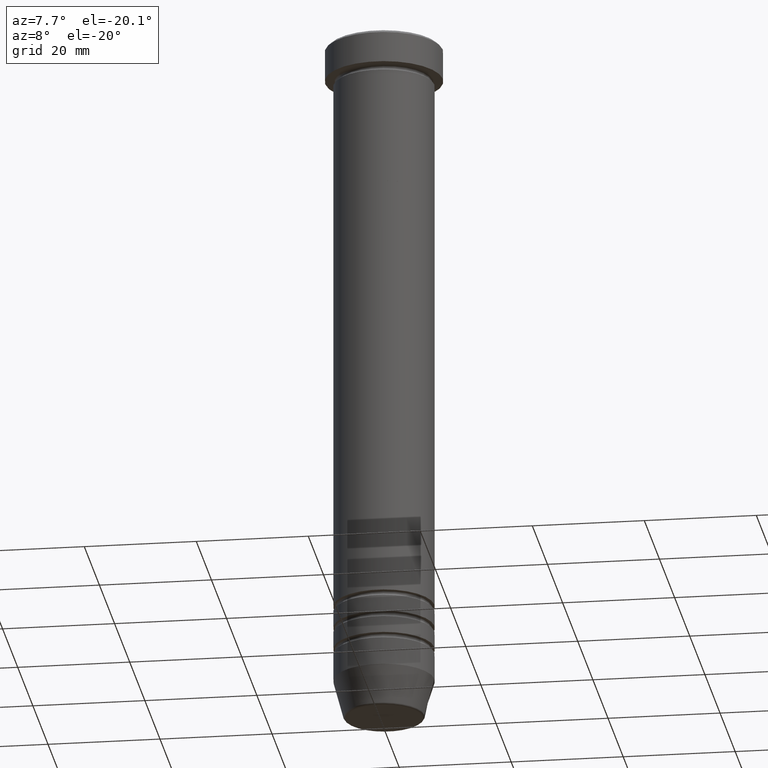
[diagram: clean part render]
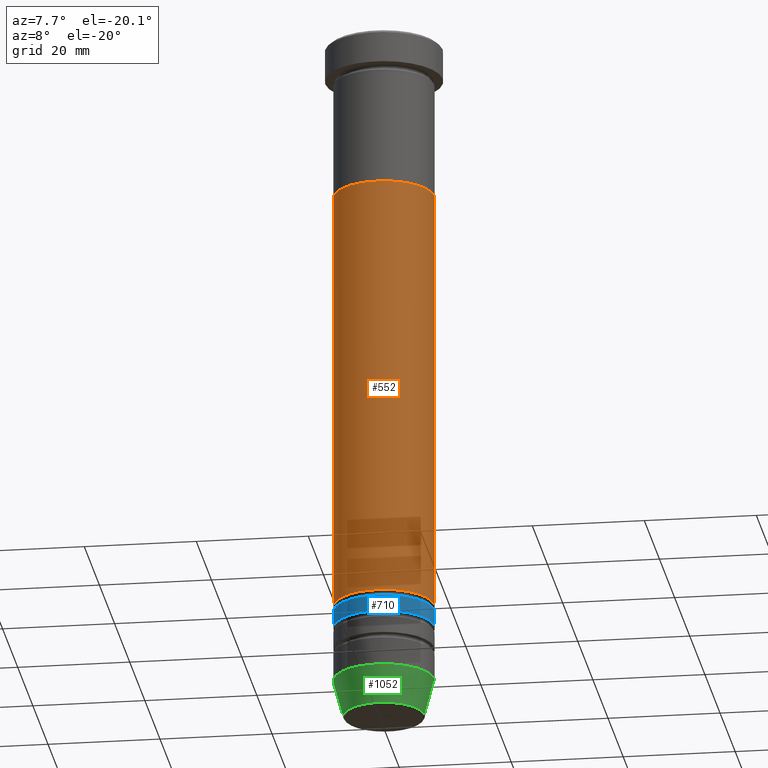
[diagram: same view with three faces highlighted in distinct colors, each labeled with its STEP entity id]
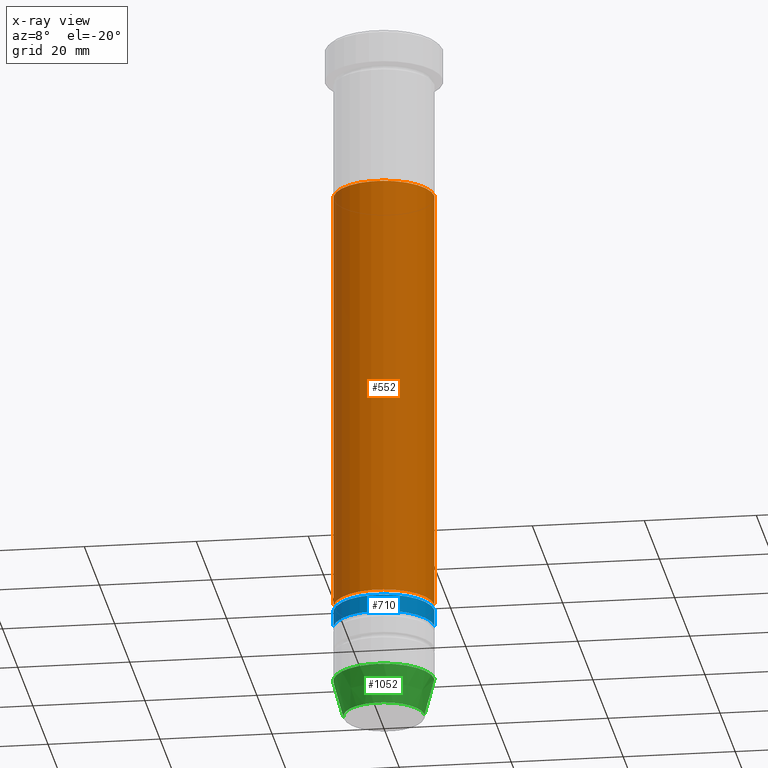
[diagram: x-ray of the same camera — body ghosted, the three highlighted faces saturated]
A machine part, auxiliary view with three faces highlighted in distinct colors.
The next image is the same camera in x-ray (body ghosted, the three faces saturated) — at least one of them is partly hidden behind the body in this view.
Their STEP definitions:

[orange] entity #552 — the highlighted cylindrical surface (partial cylindrical patch) has radius 9 mm, axis along (-0, -0, 1).
#26 = CYLINDRICAL_SURFACE ( 'NONE', #850, 8.999999999999996447 ) ;
#64 = CARTESIAN_POINT ( 'NONE',  ( -8.999999999999992895, 1.102182119232617122E-15, -105.0000000000000142 ) ) ;
#116 = VERTEX_POINT ( 'NONE', #64 ) ;
#133 = DIRECTION ( 'NONE',  ( -0.000000000000000000, -0.000000000000000000, 1.000000000000000000 ) ) ;
#138 = ORIENTED_EDGE ( 'NONE', *, *, #998, .T. ) ;
#204 = LINE ( 'NONE', #1101, #1059 ) ;
#270 = LINE ( 'NONE', #430, #997 ) ;
#279 = CARTESIAN_POINT ( 'NONE',  ( -9.000000000000000000, 1.102182119232617911E-15, -28.00000000000000000 ) ) ;
#285 = VERTEX_POINT ( 'NONE', #279 ) ;
#334 = DIRECTION ( 'NONE',  ( -0.000000000000000000, -0.000000000000000000, 1.000000000000000000 ) ) ;
#382 = AXIS2_PLACEMENT_3D ( 'NONE', #660, #859, #1043 ) ;
#430 = CARTESIAN_POINT ( 'NONE',  ( 8.999999999999996447, 0.000000000000000000, 0.000000000000000000 ) ) ;
#472 = ORIENTED_EDGE ( 'NONE', *, *, #786, .F. ) ;
#487 = EDGE_LOOP ( 'NONE', ( #472, #138, #547, #1047 ) ) ;
#546 = DIRECTION ( 'NONE',  ( -0.000000000000000000, -0.000000000000000000, 1.000000000000000000 ) ) ;
#547 = ORIENTED_EDGE ( 'NONE', *, *, #778, .T. ) ;
#552 = ADVANCED_FACE ( 'NONE', ( #916 ), #26, .T. ) ;
#585 = AXIS2_PLACEMENT_3D ( 'NONE', #1048, #334, #1148 ) ;
#660 = CARTESIAN_POINT ( 'NONE',  ( 0.000000000000000000, 0.000000000000000000, -28.00000000000000000 ) ) ;
#750 = CIRCLE ( 'NONE', #382, 9.000000000000000000 ) ;
#778 = EDGE_CURVE ( 'NONE', #863, #811, #270, .T. ) ;
#786 = EDGE_CURVE ( 'NONE', #116, #285, #204, .T. ) ;
#811 = VERTEX_POINT ( 'NONE', #1004 ) ;
#832 = DIRECTION ( 'NONE',  ( 1.000000000000000000, 0.000000000000000000, 0.000000000000000000 ) ) ;
#850 = AXIS2_PLACEMENT_3D ( 'NONE', #1002, #133, #832 ) ;
#853 = CARTESIAN_POINT ( 'NONE',  ( 8.999999999999992895, 0.000000000000000000, -105.0000000000000142 ) ) ;
#859 = DIRECTION ( 'NONE',  ( -0.000000000000000000, -0.000000000000000000, 1.000000000000000000 ) ) ;
#863 = VERTEX_POINT ( 'NONE', #853 ) ;
#894 = EDGE_CURVE ( 'NONE', #285, #811, #750, .T. ) ;
#916 = FACE_OUTER_BOUND ( 'NONE', #487, .T. ) ;
#981 = CIRCLE ( 'NONE', #585, 8.999999999999992895 ) ;
#993 = DIRECTION ( 'NONE',  ( -0.000000000000000000, -0.000000000000000000, 1.000000000000000000 ) ) ;
#997 = VECTOR ( 'NONE', #993, 1000.000000000000000 ) ;
#998 = EDGE_CURVE ( 'NONE', #116, #863, #981, .T. ) ;
#1002 = CARTESIAN_POINT ( 'NONE',  ( 0.000000000000000000, 0.000000000000000000, 0.000000000000000000 ) ) ;
#1004 = CARTESIAN_POINT ( 'NONE',  ( 9.000000000000000000, 0.000000000000000000, -28.00000000000000000 ) ) ;
#1043 = DIRECTION ( 'NONE',  ( 1.000000000000000000, 0.000000000000000000, 0.000000000000000000 ) ) ;
#1047 = ORIENTED_EDGE ( 'NONE', *, *, #894, .F. ) ;
#1048 = CARTESIAN_POINT ( 'NONE',  ( 0.000000000000000000, 0.000000000000000000, -105.0000000000000142 ) ) ;
#1059 = VECTOR ( 'NONE', #546, 1000.000000000000000 ) ;
#1101 = CARTESIAN_POINT ( 'NONE',  ( -8.999999999999996447, 1.102182119232617319E-15, 0.000000000000000000 ) ) ;
#1148 = DIRECTION ( 'NONE',  ( 1.000000000000000000, 0.000000000000000000, 0.000000000000000000 ) ) ;

[blue] entity #710 — the highlighted cylindrical surface (partial cylindrical patch) has radius 9 mm, axis along (-0, -0, 1).
#28 = ORIENTED_EDGE ( 'NONE', *, *, #1029, .T. ) ;
#48 = DIRECTION ( 'NONE',  ( 1.000000000000000000, 0.000000000000000000, 0.000000000000000000 ) ) ;
#61 = ORIENTED_EDGE ( 'NONE', *, *, #278, .F. ) ;
#94 = DIRECTION ( 'NONE',  ( -0.000000000000000000, -0.000000000000000000, 1.000000000000000000 ) ) ;
#139 = VERTEX_POINT ( 'NONE', #953 ) ;
#165 = CARTESIAN_POINT ( 'NONE',  ( 0.000000000000000000, 0.000000000000000000, -109.0000000000000142 ) ) ;
#168 = EDGE_CURVE ( 'NONE', #737, #1019, #733, .T. ) ;
#176 = CARTESIAN_POINT ( 'NONE',  ( 9.000000000000000000, 0.000000000000000000, -106.0000000000000142 ) ) ;
#188 = CARTESIAN_POINT ( 'NONE',  ( 0.000000000000000000, 0.000000000000000000, -106.0000000000000142 ) ) ;
#278 = EDGE_CURVE ( 'NONE', #737, #139, #722, .T. ) ;
#293 = VERTEX_POINT ( 'NONE', #176 ) ;
#308 = DIRECTION ( 'NONE',  ( 1.000000000000000000, 0.000000000000000000, 0.000000000000000000 ) ) ;
#309 = AXIS2_PLACEMENT_3D ( 'NONE', #188, #94, #433 ) ;
#424 = CARTESIAN_POINT ( 'NONE',  ( 8.999999999999998224, 0.000000000000000000, 0.000000000000000000 ) ) ;
#433 = DIRECTION ( 'NONE',  ( 1.000000000000000000, 0.000000000000000000, 0.000000000000000000 ) ) ;
#435 = VECTOR ( 'NONE', #1080, 1000.000000000000000 ) ;
#482 = CARTESIAN_POINT ( 'NONE',  ( -8.999999999999998224, 1.102182119232617517E-15, -109.0000000000000142 ) ) ;
#557 = AXIS2_PLACEMENT_3D ( 'NONE', #165, #1107, #48 ) ;
#603 = CARTESIAN_POINT ( 'NONE',  ( -8.999999999999998224, 1.102182119232617517E-15, 0.000000000000000000 ) ) ;
#604 = VECTOR ( 'NONE', #1053, 1000.000000000000000 ) ;
#691 = LINE ( 'NONE', #424, #604 ) ;
#710 = ADVANCED_FACE ( 'NONE', ( #777 ), #947, .T. ) ;
#722 = LINE ( 'NONE', #603, #435 ) ;
#733 = CIRCLE ( 'NONE', #557, 8.999999999999998224 ) ;
#737 = VERTEX_POINT ( 'NONE', #482 ) ;
#757 = CARTESIAN_POINT ( 'NONE',  ( 0.000000000000000000, 0.000000000000000000, 0.000000000000000000 ) ) ;
#777 = FACE_OUTER_BOUND ( 'NONE', #1030, .T. ) ;
#808 = CIRCLE ( 'NONE', #309, 9.000000000000000000 ) ;
#892 = CARTESIAN_POINT ( 'NONE',  ( 8.999999999999998224, 0.000000000000000000, -109.0000000000000142 ) ) ;
#918 = AXIS2_PLACEMENT_3D ( 'NONE', #757, #1130, #308 ) ;
#947 = CYLINDRICAL_SURFACE ( 'NONE', #918, 8.999999999999998224 ) ;
#953 = CARTESIAN_POINT ( 'NONE',  ( -9.000000000000000000, 1.102182119232617714E-15, -106.0000000000000142 ) ) ;
#1019 = VERTEX_POINT ( 'NONE', #892 ) ;
#1029 = EDGE_CURVE ( 'NONE', #1019, #293, #691, .T. ) ;
#1030 = EDGE_LOOP ( 'NONE', ( #61, #1031, #28, #1121 ) ) ;
#1031 = ORIENTED_EDGE ( 'NONE', *, *, #168, .T. ) ;
#1053 = DIRECTION ( 'NONE',  ( -0.000000000000000000, -0.000000000000000000, 1.000000000000000000 ) ) ;
#1080 = DIRECTION ( 'NONE',  ( -0.000000000000000000, -0.000000000000000000, 1.000000000000000000 ) ) ;
#1095 = EDGE_CURVE ( 'NONE', #139, #293, #808, .T. ) ;
#1107 = DIRECTION ( 'NONE',  ( -0.000000000000000000, -0.000000000000000000, 1.000000000000000000 ) ) ;
#1121 = ORIENTED_EDGE ( 'NONE', *, *, #1095, .F. ) ;
#1130 = DIRECTION ( 'NONE',  ( -0.000000000000000000, -0.000000000000000000, 1.000000000000000000 ) ) ;

[green] entity #1052 — the highlighted conical surface has half-angle 15 deg.
#31 = VERTEX_POINT ( 'NONE', #337 ) ;
#63 = VERTEX_POINT ( 'NONE', #184 ) ;
#90 = LINE ( 'NONE', #726, #328 ) ;
#123 = DIRECTION ( 'NONE',  ( -0.000000000000000000, -0.000000000000000000, 1.000000000000000000 ) ) ;
#160 = DIRECTION ( 'NONE',  ( -0.000000000000000000, -0.000000000000000000, 1.000000000000000000 ) ) ;
#184 = CARTESIAN_POINT ( 'NONE',  ( 9.000000000000000000, 0.000000000000000000, -119.0000000000000000 ) ) ;
#219 = AXIS2_PLACEMENT_3D ( 'NONE', #597, #160, #933 ) ;
#265 = DIRECTION ( 'NONE',  ( 1.000000000000000000, 0.000000000000000000, 0.000000000000000000 ) ) ;
#266 = EDGE_CURVE ( 'NONE', #296, #31, #90, .T. ) ;
#282 = DIRECTION ( 'NONE',  ( 0.2588190451025213501, 0.000000000000000000, 0.9659258262890680902 ) ) ;
#286 = EDGE_CURVE ( 'NONE', #876, #63, #693, .T. ) ;
#296 = VERTEX_POINT ( 'NONE', #776 ) ;
#328 = VECTOR ( 'NONE', #789, 1000.000000000000000 ) ;
#337 = CARTESIAN_POINT ( 'NONE',  ( -9.000000000000000000, 1.102182119232617714E-15, -119.0000000000000000 ) ) ;
#345 = CIRCLE ( 'NONE', #219, 7.223655072137193045 ) ;
#363 = EDGE_CURVE ( 'NONE', #296, #876, #345, .T. ) ;
#439 = ORIENTED_EDGE ( 'NONE', *, *, #800, .F. ) ;
#451 = CONICAL_SURFACE ( 'NONE', #1115, 7.124355652982134579, 0.2617993877991500740 ) ;
#488 = AXIS2_PLACEMENT_3D ( 'NONE', #646, #123, #1001 ) ;
#569 = ORIENTED_EDGE ( 'NONE', *, *, #363, .T. ) ;
#597 = CARTESIAN_POINT ( 'NONE',  ( 0.000000000000000000, 0.000000000000000000, -125.6294095225512564 ) ) ;
#646 = CARTESIAN_POINT ( 'NONE',  ( 0.000000000000000000, 0.000000000000000000, -119.0000000000000000 ) ) ;
#689 = ORIENTED_EDGE ( 'NONE', *, *, #286, .T. ) ;
#693 = LINE ( 'NONE', #874, #1093 ) ;
#709 = FACE_OUTER_BOUND ( 'NONE', #932, .T. ) ;
#720 = CIRCLE ( 'NONE', #488, 9.000000000000000000 ) ;
#726 = CARTESIAN_POINT ( 'NONE',  ( -7.124355652982134579, 8.724819346411922144E-16, -126.0000000000000000 ) ) ;
#776 = CARTESIAN_POINT ( 'NONE',  ( -7.223655072137193045, 9.934123627281765110E-16, -125.6294095225512564 ) ) ;
#787 = CARTESIAN_POINT ( 'NONE',  ( 0.000000000000000000, 0.000000000000000000, -126.0000000000000000 ) ) ;
#789 = DIRECTION ( 'NONE',  ( -0.2588190451025213501, 3.169619151431772337E-17, 0.9659258262890680902 ) ) ;
#800 = EDGE_CURVE ( 'NONE', #31, #63, #720, .T. ) ;
#843 = ORIENTED_EDGE ( 'NONE', *, *, #266, .F. ) ;
#874 = CARTESIAN_POINT ( 'NONE',  ( 7.124355652982134579, 0.000000000000000000, -126.0000000000000000 ) ) ;
#876 = VERTEX_POINT ( 'NONE', #1010 ) ;
#932 = EDGE_LOOP ( 'NONE', ( #843, #569, #689, #439 ) ) ;
#933 = DIRECTION ( 'NONE',  ( -1.000000000000000000, 0.000000000000000000, 0.000000000000000000 ) ) ;
#1001 = DIRECTION ( 'NONE',  ( 1.000000000000000000, 0.000000000000000000, 0.000000000000000000 ) ) ;
#1010 = CARTESIAN_POINT ( 'NONE',  ( 7.223655072137193045, 0.000000000000000000, -125.6294095225512564 ) ) ;
#1052 = ADVANCED_FACE ( 'NONE', ( #709 ), #451, .T. ) ;
#1093 = VECTOR ( 'NONE', #282, 1000.000000000000000 ) ;
#1115 = AXIS2_PLACEMENT_3D ( 'NONE', #787, #1143, #265 ) ;
#1143 = DIRECTION ( 'NONE',  ( -0.000000000000000000, -0.000000000000000000, 1.000000000000000000 ) ) ;